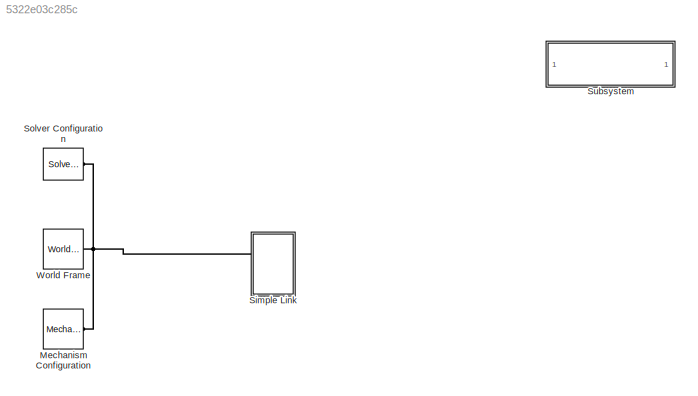
MODEL slx_5322e03c285c
KIND model
CONFIG AbsTol = auto
CONFIG EnableMultiTasking = on
CONFIG FixedStep = auto
CONFIG MaxStep = auto
CONFIG MinStep = auto
CONFIG RelTol = 1e-3
CONFIG SampleTimeConstraint = Unconstrained
CONFIG Solver = VariableStepAuto
CONFIG SolverName = VariableStepAuto
CONFIG StartTime = 0.0
CONFIG StopTime = 10.0
BLOCK [Reference] Mechanism Configuration  REF=sm_lib/Utilities/Mechanism
Configuration
  Ports = [0, 0, 0, 0, 0, 0, 1]
  SourceBlock = sm_lib/Utilities/Mechanism\nConfiguration
  SourceProductBaseCode = MS
  SourceProductName = Simscape Multibody
  SourceType = Mechanism\nConfiguration
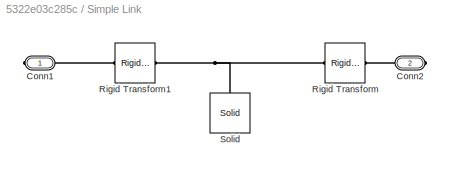
BLOCK [SubSystem] Simple Link 
  Ports = [0, 0, 0, 0, 0, 0, 2]
  RequestExecContextInheritance = off
BLOCK [PMIOPort] Simple Link /Conn1
  Side = Right
BLOCK [PMIOPort] Simple Link /Conn2
  Port = 2
  Side = Right
BLOCK [Reference] Simple Link /Rigid Transform  REF=sm_lib/Frames and
Transforms/Rigid
Transform
  Ports = [0, 0, 0, 0, 0, 1, 1]
  SourceBlock = sm_lib/Frames and\nTransforms/Rigid\nTransform
  SourceProductBaseCode = MS
  SourceProductName = Simscape Multibody
  SourceType = Rigid\nTransform
BLOCK [Reference] Simple Link /Rigid Transform1  REF=sm_lib/Frames and
Transforms/Rigid
Transform
  Ports = [0, 0, 0, 0, 0, 1, 1]
  SourceBlock = sm_lib/Frames and\nTransforms/Rigid\nTransform
  SourceProductBaseCode = MS
  SourceProductName = Simscape Multibody
  SourceType = Rigid\nTransform
BLOCK [Reference] Simple Link /Solid  REF=sm_lib/Body Elements/Solid
  Ports = [0, 0, 0, 0, 0, 0, 1]
  SourceBlock = sm_lib/Body Elements/Solid
  SourceProductBaseCode = MS
  SourceProductName = Simscape Multibody
  SourceType = Solid
BLOCK [Reference] Solver Configuration  REF=nesl_utility/Solver
Configuration
  Ports = [0, 0, 0, 0, 0, 0, 1]
  SourceBlock = nesl_utility/Solver\nConfiguration
  SourceProductBaseCode = SS
  SourceProductName = Simscape
  SourceType = Solver\nConfiguration
BLOCK [SubSystem] Subsystem
  OpenFcn = open_system('sm_lib')
  Ports = []
  RequestExecContextInheritance = off
  ShowPortLabels = none
BLOCK [Reference] World Frame  REF=sm_lib/Frames and
Transforms/World Frame
  Ports = [0, 0, 0, 0, 0, 0, 1]
  SourceBlock = sm_lib/Frames and\nTransforms/World Frame
  SourceProductBaseCode = MS
  SourceProductName = Simscape Multibody
  SourceType = World Frame
PNET net1: Mechanism Configuration:RConn1 -- Simple Link :RConn1 -- Solver Configuration:RConn1 -- World Frame:RConn1
PLINE Simple Link /Conn1:RConn1 -- Simple Link /Rigid Transform1:RConn1
PLINE Simple Link /Conn2:RConn1 -- Simple Link /Rigid Transform:RConn1
PNET net2: Simple Link /Rigid Transform1:LConn1 -- Simple Link /Rigid Transform:LConn1 -- Simple Link /Solid:RConn1
note: PNET lines group multi-terminal physical nets as a canonical sorted terminal list (undirected conserving connections); 2-terminal nets keep the pairwise PLINE form
